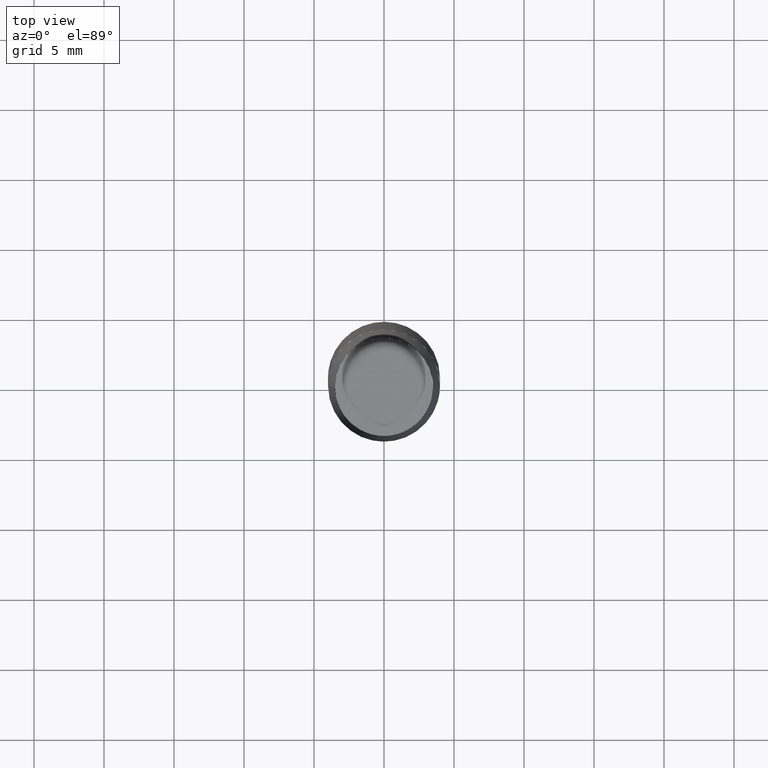
[diagram: clean part render]
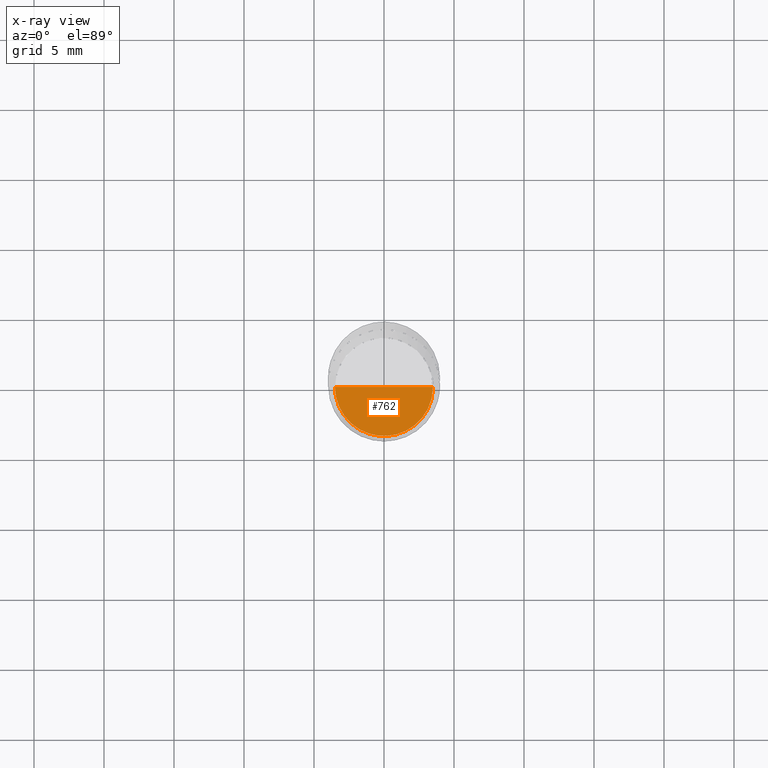
[diagram: x-ray — body ghosted, one internal face saturated and labeled with its STEP entity id]
A machine part, top view, then the same camera in x-ray: the body is ghosted and one INTERNAL B-rep face — a face not visible from any outside direction — is saturated and labeled: STEP entity #762.
In plain terms, the highlighted face is a freeform B-spline surface patch.
Its self-contained STEP definition (entity closure, byte-faithful):
#609=CARTESIAN_POINT('',(3.5,0.0,-6.0));
#613=CARTESIAN_POINT('',(-3.5,0.0,-6.0));
#614=CARTESIAN_POINT('',(0.0,0.0,-6.0));
#617=CARTESIAN_POINT('',(-3.5,-3.5,-6.0));
#618=CARTESIAN_POINT('',(0.0,-3.5,-6.0));
#619=CARTESIAN_POINT('',(3.5,-3.5,-6.0));
#747=(
BOUNDED_SURFACE()
B_SPLINE_SURFACE(1,2,(
(#613,#617,#618,#619,#609),
(#614,#614,#614,#614,#614)
), .UNSPECIFIED.,.F.,.F.,.F.)
B_SPLINE_SURFACE_WITH_KNOTS((2,2),(3,2,3),(
0.0,1.0),(
0.0,0.5,1.0), .UNSPECIFIED.)
GEOMETRIC_REPRESENTATION_ITEM()
RATIONAL_B_SPLINE_SURFACE(((1.0,0.707106781187,1.0,0.707106781187,1.0),
(1.0,0.707106781187,1.0,0.707106781187,1.0)
))
REPRESENTATION_ITEM('')
SURFACE()
);
#748=(
BOUNDED_CURVE()
B_SPLINE_CURVE(2,(#609,#619,#618,#617,#613),.UNSPECIFIED.,.F.,.F.)
B_SPLINE_CURVE_WITH_KNOTS((3,2,3),
(0.0,0.5,1.0),.UNSPECIFIED.)
CURVE()
GEOMETRIC_REPRESENTATION_ITEM()
RATIONAL_B_SPLINE_CURVE((1.0,0.707106781187,1.0,0.707106781187,1.0))
REPRESENTATION_ITEM('')
);
#749=(
BOUNDED_CURVE()
B_SPLINE_CURVE(1,(#613,#614),.UNSPECIFIED.,.F.,.F.)
B_SPLINE_CURVE_WITH_KNOTS((2,2),
(0.0,1.0),.UNSPECIFIED.)
CURVE()
GEOMETRIC_REPRESENTATION_ITEM()
RATIONAL_B_SPLINE_CURVE((1.0,1.0))
REPRESENTATION_ITEM('')
);
#750=(
BOUNDED_CURVE()
B_SPLINE_CURVE(1,(#614,#609),.UNSPECIFIED.,.F.,.F.)
B_SPLINE_CURVE_WITH_KNOTS((2,2),
(0.0,1.0),.UNSPECIFIED.)
CURVE()
GEOMETRIC_REPRESENTATION_ITEM()
RATIONAL_B_SPLINE_CURVE((1.0,1.0))
REPRESENTATION_ITEM('')
);
#751=VERTEX_POINT('',#609);
#752=VERTEX_POINT('',#613);
#753=VERTEX_POINT('',#614);
#754=EDGE_CURVE('',#751,#752,#748,.T.);
#755=EDGE_CURVE('',#752,#753,#749,.T.);
#756=EDGE_CURVE('',#753,#751,#750,.T.);
#757=ORIENTED_EDGE('',*,*,#754,.T.);
#758=ORIENTED_EDGE('',*,*,#755,.T.);
#759=ORIENTED_EDGE('',*,*,#756,.T.);
#760=EDGE_LOOP('',(#757,#758,#759));
#761=FACE_OUTER_BOUND('',#760,.T.);
#762=ADVANCED_FACE('',(#761),#747,.T.);